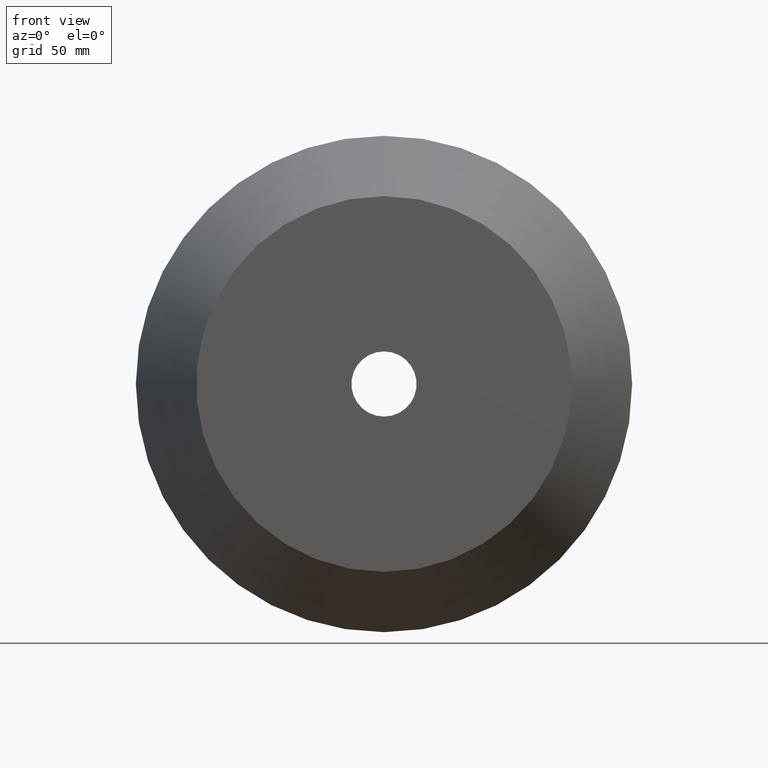
[diagram: clean part render]
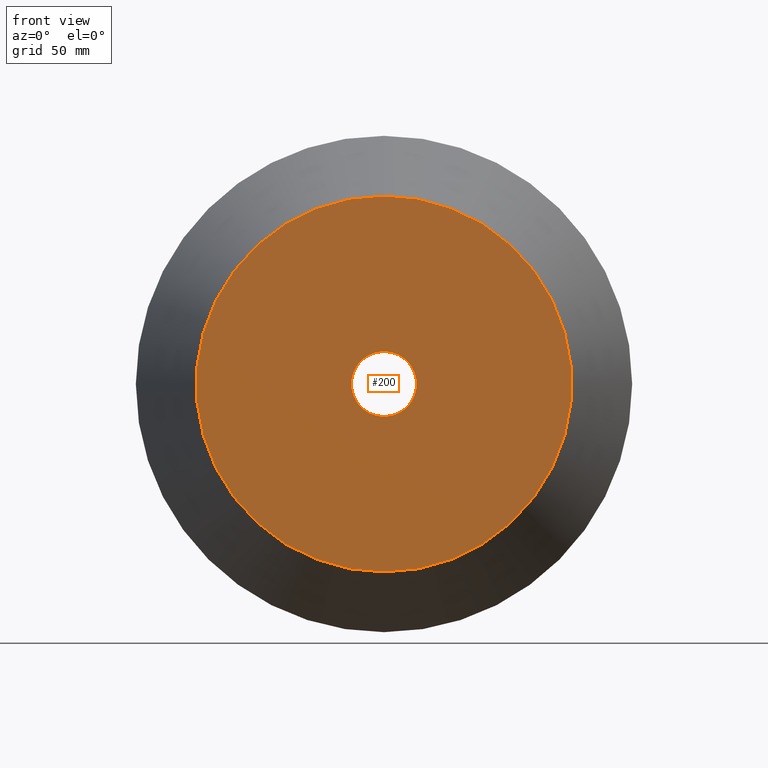
[diagram: same view with one face highlighted and labeled with its STEP entity id]
A machine part, front view. The second image highlights one B-rep face of the part: STEP entity #200.
In plain terms, the highlighted planar face has unit normal (0, 1, 0).
Its self-contained STEP definition (entity closure, byte-faithful):
#1 = ORIENTED_EDGE ( 'NONE', *, *, #336, .F. ) ;
#20 = AXIS2_PLACEMENT_3D ( 'NONE', #87, #216, #269 ) ;
#40 = AXIS2_PLACEMENT_3D ( 'NONE', #224, #52, #352 ) ;
#44 = DIRECTION ( 'NONE',  ( -0.0000000000000000000, -1.000000000000000000, -0.0000000000000000000 ) ) ;
#51 = CARTESIAN_POINT ( 'NONE',  ( -23.00000000000000400, 3.469446951953614200E-015, 0.0000000000000000000 ) ) ;
#52 = DIRECTION ( 'NONE',  ( -0.0000000000000000000, -1.000000000000000000, -0.0000000000000000000 ) ) ;
#60 = DIRECTION ( 'NONE',  ( -0.0000000000000000000, -1.000000000000000000, -0.0000000000000000000 ) ) ;
#69 = CARTESIAN_POINT ( 'NONE',  ( 1.882894453689055400E-014, -3.469446951953614200E-015, -132.5000000000000000 ) ) ;
#71 = DIRECTION ( 'NONE',  ( 0.0000000000000000000, 1.000000000000000000, 0.0000000000000000000 ) ) ;
#74 = CARTESIAN_POINT ( 'NONE',  ( 0.0000000000000000000, -3.469446951953614200E-015, 132.5000000000000000 ) ) ;
#87 = CARTESIAN_POINT ( 'NONE',  ( 0.0000000000000000000, 1.040834085586084300E-014, 0.0000000000000000000 ) ) ;
#109 = DIRECTION ( 'NONE',  ( 0.0000000000000000000, 0.0000000000000000000, -1.000000000000000000 ) ) ;
#113 = EDGE_CURVE ( 'NONE', #244, #274, #217, .T. ) ;
#155 = FACE_BOUND ( 'NONE', #187, .T. ) ;
#156 = EDGE_LOOP ( 'NONE', ( #193, #213 ) ) ;
#158 = EDGE_CURVE ( 'NONE', #222, #166, #160, .T. ) ;
#160 = CIRCLE ( 'NONE', #40, 23.00000000000000400 ) ;
#161 = CIRCLE ( 'NONE', #20, 23.00000000000000400 ) ;
#166 = VERTEX_POINT ( 'NONE', #202 ) ;
#182 = CARTESIAN_POINT ( 'NONE',  ( 0.0000000000000000000, -3.469446951953614200E-015, 0.0000000000000000000 ) ) ;
#187 = EDGE_LOOP ( 'NONE', ( #1, #339 ) ) ;
#190 = DIRECTION ( 'NONE',  ( 0.0000000000000000000, 0.0000000000000000000, -1.000000000000000000 ) ) ;
#193 = ORIENTED_EDGE ( 'NONE', *, *, #317, .T. ) ;
#200 = ADVANCED_FACE ( 'NONE', ( #155, #287 ), #231, .F. ) ;
#202 = CARTESIAN_POINT ( 'NONE',  ( 0.0000000000000000000, 1.040834085586084300E-014, -23.00000000000000400 ) ) ;
#213 = ORIENTED_EDGE ( 'NONE', *, *, #113, .T. ) ;
#216 = DIRECTION ( 'NONE',  ( -0.0000000000000000000, -1.000000000000000000, -0.0000000000000000000 ) ) ;
#217 = CIRCLE ( 'NONE', #288, 132.5000000000000000 ) ;
#222 = VERTEX_POINT ( 'NONE', #276 ) ;
#224 = CARTESIAN_POINT ( 'NONE',  ( 0.0000000000000000000, 1.040834085586084300E-014, 0.0000000000000000000 ) ) ;
#231 = PLANE ( 'NONE',  #282 ) ;
#244 = VERTEX_POINT ( 'NONE', #69 ) ;
#248 = DIRECTION ( 'NONE',  ( 0.0000000000000000000, -0.0000000000000000000, 1.000000000000000000 ) ) ;
#269 = DIRECTION ( 'NONE',  ( 0.0000000000000000000, 0.0000000000000000000, -1.000000000000000000 ) ) ;
#274 = VERTEX_POINT ( 'NONE', #74 ) ;
#276 = CARTESIAN_POINT ( 'NONE',  ( 2.816687638038913100E-015, 1.040834085586084300E-014, 23.00000000000000400 ) ) ;
#282 = AXIS2_PLACEMENT_3D ( 'NONE', #51, #71, #248 ) ;
#287 = FACE_OUTER_BOUND ( 'NONE', #156, .T. ) ;
#288 = AXIS2_PLACEMENT_3D ( 'NONE', #182, #44, #190 ) ;
#304 = AXIS2_PLACEMENT_3D ( 'NONE', #307, #60, #109 ) ;
#307 = CARTESIAN_POINT ( 'NONE',  ( 0.0000000000000000000, -3.469446951953614200E-015, 0.0000000000000000000 ) ) ;
#317 = EDGE_CURVE ( 'NONE', #274, #244, #334, .T. ) ;
#334 = CIRCLE ( 'NONE', #304, 132.5000000000000000 ) ;
#336 = EDGE_CURVE ( 'NONE', #166, #222, #161, .T. ) ;
#339 = ORIENTED_EDGE ( 'NONE', *, *, #158, .F. ) ;
#352 = DIRECTION ( 'NONE',  ( 0.0000000000000000000, 0.0000000000000000000, -1.000000000000000000 ) ) ;